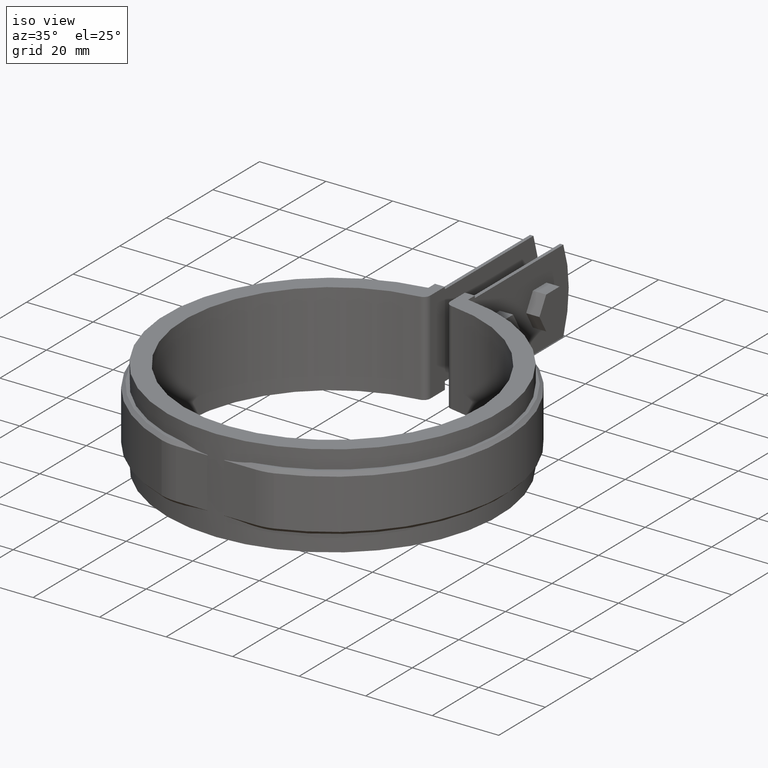
[diagram: clean part render]
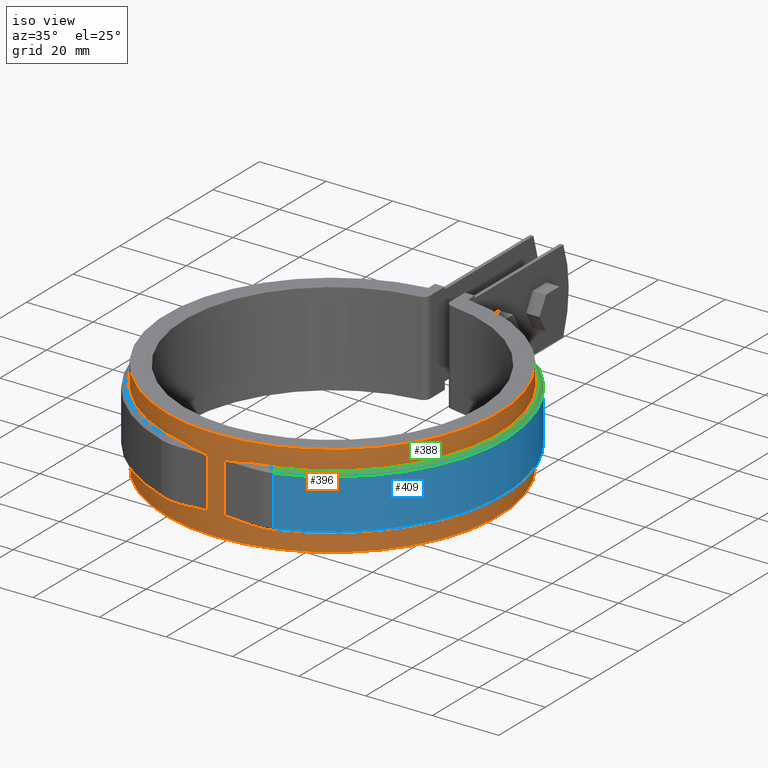
[diagram: same view with three faces highlighted in distinct colors, each labeled with its STEP entity id]
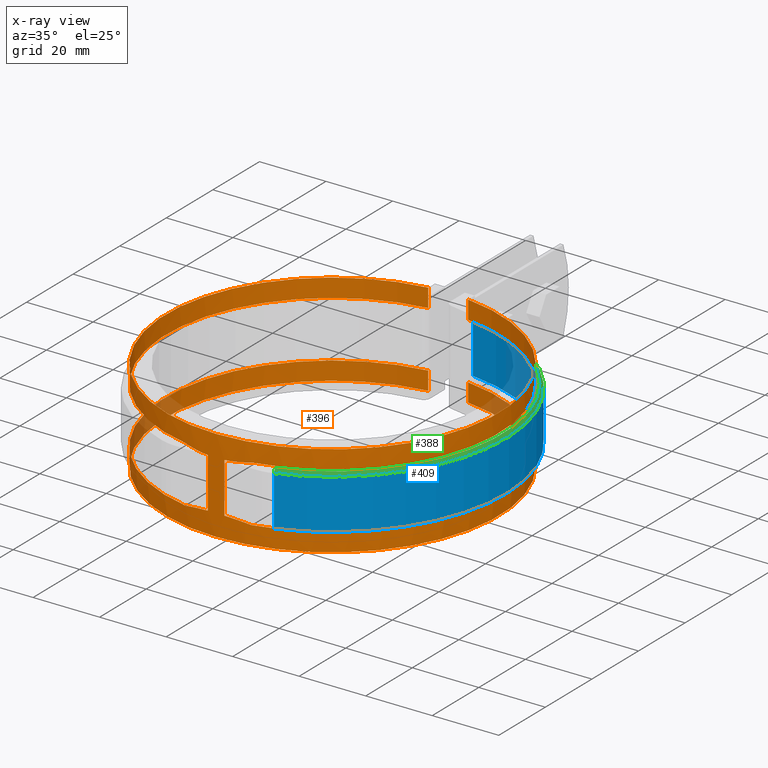
[diagram: x-ray of the same camera — body ghosted, the three highlighted faces saturated]
A machine part, iso view with three faces highlighted in distinct colors.
The next image is the same camera in x-ray (body ghosted, the three faces saturated) — at least one of them is partly hidden behind the body in this view.
Their STEP definitions:

[orange] entity #396 — the highlighted cylindrical surface (partial cylindrical patch) has radius 50.05 mm, axis along (0, 0, -1).
#396 = ADVANCED_FACE( '', ( #686 ), #687, .T. );
#686 = FACE_OUTER_BOUND( '', #1658, .T. );
#687 = CYLINDRICAL_SURFACE( '', #1659, 50.0500000000000 );
#1658 = EDGE_LOOP( '', ( #3135, #3136, #3137, #3138, #3139, #3140, #3141, #3142, #3143, #3144, #3145, #3146, #3147, #3148, #3149, #3150 ) );
#1659 = AXIS2_PLACEMENT_3D( '', #3151, #3152, #3153 );
#3135 = ORIENTED_EDGE( '', *, *, #4268, .F. );
#3136 = ORIENTED_EDGE( '', *, *, #4290, .T. );
#3137 = ORIENTED_EDGE( '', *, *, #4264, .T. );
#3138 = ORIENTED_EDGE( '', *, *, #4291, .T. );
#3139 = ORIENTED_EDGE( '', *, *, #4292, .T. );
#3140 = ORIENTED_EDGE( '', *, *, #4293, .T. );
#3141 = ORIENTED_EDGE( '', *, *, #4294, .T. );
#3142 = ORIENTED_EDGE( '', *, *, #4295, .F. );
#3143 = ORIENTED_EDGE( '', *, *, #4296, .T. );
#3144 = ORIENTED_EDGE( '', *, *, #4297, .T. );
#3145 = ORIENTED_EDGE( '', *, *, #4298, .T. );
#3146 = ORIENTED_EDGE( '', *, *, #4255, .T. );
#3147 = ORIENTED_EDGE( '', *, *, #4299, .F. );
#3148 = ORIENTED_EDGE( '', *, *, #4300, .F. );
#3149 = ORIENTED_EDGE( '', *, *, #4285, .F. );
#3150 = ORIENTED_EDGE( '', *, *, #4301, .T. );
#3151 = CARTESIAN_POINT( '', ( 1.73472347597681E-015, -1.38777878078145E-014, -14.0000000000000 ) );
#3152 = DIRECTION( '', ( 0.000000000000000, 0.000000000000000, -1.00000000000000 ) );
#3153 = DIRECTION( '', ( -0.141271445606700, 0.989970897883465, 0.000000000000000 ) );
#4255 = EDGE_CURVE( '', #4927, #4925, #4928, .T. );
#4264 = EDGE_CURVE( '', #4945, #4943, #4946, .T. );
#4268 = EDGE_CURVE( '', #4951, #4953, #4954, .T. );
#4285 = EDGE_CURVE( '', #4981, #4983, #4984, .T. );
#4290 = EDGE_CURVE( '', #4951, #4945, #4991, .T. );
#4291 = EDGE_CURVE( '', #4943, #4992, #4993, .F. );
#4292 = EDGE_CURVE( '', #4992, #4994, #4995, .T. );
#4293 = EDGE_CURVE( '', #4994, #4996, #4997, .T. );
#4294 = EDGE_CURVE( '', #4996, #4998, #4999, .T. );
#4295 = EDGE_CURVE( '', #5000, #4998, #5001, .T. );
#4296 = EDGE_CURVE( '', #5000, #5002, #5003, .T. );
#4297 = EDGE_CURVE( '', #5002, #5004, #5005, .F. );
#4298 = EDGE_CURVE( '', #5004, #4927, #5006, .F. );
#4299 = EDGE_CURVE( '', #5007, #4925, #5008, .T. );
#4300 = EDGE_CURVE( '', #4983, #5007, #5009, .T. );
#4301 = EDGE_CURVE( '', #4981, #4953, #5010, .T. );
#4925 = VERTEX_POINT( '', #7552 );
#4927 = VERTEX_POINT( '', #7555 );
#4928 = ELLIPSE( '', #7556, 70.7813887967734, 50.0500000000000 );
#4943 = VERTEX_POINT( '', #7578 );
#4945 = VERTEX_POINT( '', #7581 );
#4946 = LINE( '', #7582, #7583 );
#4951 = VERTEX_POINT( '', #7589 );
#4953 = VERTEX_POINT( '', #7592 );
#4954 = CIRCLE( '', #7593, 50.0500000000000 );
#4981 = VERTEX_POINT( '', #7634 );
#4983 = VERTEX_POINT( '', #7637 );
#4984 = CIRCLE( '', #7638, 50.0500000000000 );
#4991 = ELLIPSE( '', #7647, 70.7813887967734, 50.0500000000000 );
#4992 = VERTEX_POINT( '', #7648 );
#4993 = ELLIPSE( '', #7649, 70.7813887967734, 50.0500000000000 );
#4994 = VERTEX_POINT( '', #7650 );
#4995 = CIRCLE( '', #7651, 50.0500000000000 );
#4996 = VERTEX_POINT( '', #7652 );
#4997 = LINE( '', #7653, #7654 );
#4998 = VERTEX_POINT( '', #7655 );
#4999 = CIRCLE( '', #7656, 50.0500000000000 );
#5000 = VERTEX_POINT( '', #7657 );
#5001 = LINE( '', #7658, #7659 );
#5002 = VERTEX_POINT( '', #7660 );
#5003 = CIRCLE( '', #7661, 50.0500000000000 );
#5004 = VERTEX_POINT( '', #7662 );
#5005 = ELLIPSE( '', #7663, 70.7813887967734, 50.0500000000000 );
#5006 = LINE( '', #7664, #7665 );
#5007 = VERTEX_POINT( '', #7666 );
#5008 = CIRCLE( '', #7667, 50.0500000000000 );
#5009 = LINE( '', #7668, #7669 );
#5010 = LINE( '', #7670, #7671 );
#7552 = CARTESIAN_POINT( '', ( -9.95489829179598, -49.0500000000000, -8.50000000000000 ) );
#7555 = CARTESIAN_POINT( '', ( -2.50000000000000, -49.9875234433554, -7.56247655664464 ) );
#7556 = AXIS2_PLACEMENT_3D( '', #8505, #8506, #8507 );
#7578 = CARTESIAN_POINT( '', ( 2.50000000000000, -49.9875234433554, 7.56247655664463 ) );
#7581 = CARTESIAN_POINT( '', ( 2.50000000000000, -49.9875234433554, -7.56247655664464 ) );
#7582 = CARTESIAN_POINT( '', ( 2.50000000000000, -49.9875234433554, -14.0000000000000 ) );
#7583 = VECTOR( '', #8519, 1000.00000000000 );
#7589 = CARTESIAN_POINT( '', ( 9.95489829179598, -49.0500000000000, -8.50000000000000 ) );
#7592 = CARTESIAN_POINT( '', ( 6.00000000000001, 49.6890581516696, -8.50000000000000 ) );
#7593 = AXIS2_PLACEMENT_3D( '', #8525, #8526, #8527 );
#7634 = CARTESIAN_POINT( '', ( 6.00000000000001, 49.6890581516696, -14.0000000000000 ) );
#7637 = CARTESIAN_POINT( '', ( -6.00000000000003, 49.6890581516696, -14.0000000000000 ) );
#7638 = AXIS2_PLACEMENT_3D( '', #8546, #8547, #8548 );
#7647 = AXIS2_PLACEMENT_3D( '', #8557, #8558, #8559 );
#7648 = CARTESIAN_POINT( '', ( 9.95489829179598, -49.0500000000000, 8.49999999999999 ) );
#7649 = AXIS2_PLACEMENT_3D( '', #8560, #8561, #8562 );
#7650 = CARTESIAN_POINT( '', ( 6.00000000000001, 49.6890581516696, 8.49999999999999 ) );
#7651 = AXIS2_PLACEMENT_3D( '', #8563, #8564, #8565 );
#7652 = CARTESIAN_POINT( '', ( 6.00000000000001, 49.6890581516696, 14.0000000000000 ) );
#7653 = CARTESIAN_POINT( '', ( 6.00000000000001, 49.6890581516696, -14.0000000000000 ) );
#7654 = VECTOR( '', #8566, 1000.00000000000 );
#7655 = CARTESIAN_POINT( '', ( -6.00000000000003, 49.6890581516696, 14.0000000000000 ) );
#7656 = AXIS2_PLACEMENT_3D( '', #8567, #8568, #8569 );
#7657 = CARTESIAN_POINT( '', ( -6.00000000000003, 49.6890581516696, 8.50000000000000 ) );
#7658 = CARTESIAN_POINT( '', ( -6.00000000000003, 49.6890581516696, -14.0000000000000 ) );
#7659 = VECTOR( '', #8570, 1000.00000000000 );
#7660 = CARTESIAN_POINT( '', ( -9.95489829179598, -49.0500000000000, 8.49999999999999 ) );
#7661 = AXIS2_PLACEMENT_3D( '', #8571, #8572, #8573 );
#7662 = CARTESIAN_POINT( '', ( -2.50000000000000, -49.9875234433554, 7.56247655664463 ) );
#7663 = AXIS2_PLACEMENT_3D( '', #8574, #8575, #8576 );
#7664 = CARTESIAN_POINT( '', ( -2.50000000000000, -49.9875234433554, -14.0000000000000 ) );
#7665 = VECTOR( '', #8577, 1000.00000000000 );
#7666 = CARTESIAN_POINT( '', ( -6.00000000000000, 49.6890581516696, -8.50000000000000 ) );
#7667 = AXIS2_PLACEMENT_3D( '', #8578, #8579, #8580 );
#7668 = CARTESIAN_POINT( '', ( -6.00000000000003, 49.6890581516696, -14.0000000000000 ) );
#7669 = VECTOR( '', #8581, 1000.00000000000 );
#7670 = CARTESIAN_POINT( '', ( 6.00000000000001, 49.6890581516696, -14.0000000000000 ) );
#7671 = VECTOR( '', #8582, 1000.00000000000 );
#8505 = CARTESIAN_POINT( '', ( 1.73472347597681E-015, -1.38777878078145E-014, -57.5500000000000 ) );
#8506 = DIRECTION( '', ( -9.81307786677359E-018, -0.707106781186547, -0.707106781186548 ) );
#8507 = DIRECTION( '', ( -9.81307786677360E-018, -0.707106781186548, 0.707106781186547 ) );
#8519 = DIRECTION( '', ( 0.000000000000000, 0.000000000000000, 1.00000000000000 ) );
#8525 = CARTESIAN_POINT( '', ( 1.73472347597681E-015, -1.38777878078145E-014, -8.50000000000000 ) );
#8526 = DIRECTION( '', ( 0.000000000000000, 0.000000000000000, 1.00000000000000 ) );
#8527 = DIRECTION( '', ( 1.00000000000000, 0.000000000000000, 0.000000000000000 ) );
#8546 = CARTESIAN_POINT( '', ( 1.73472347597681E-015, -1.38777878078145E-014, -14.0000000000000 ) );
#8547 = DIRECTION( '', ( 0.000000000000000, 0.000000000000000, -1.00000000000000 ) );
#8548 = DIRECTION( '', ( 1.00000000000000, 2.77555756156289E-017, 0.000000000000000 ) );
#8557 = CARTESIAN_POINT( '', ( 1.73472347597681E-015, -1.38777878078145E-014, -57.5500000000000 ) );
#8558 = DIRECTION( '', ( 9.81307786677359E-018, -0.707106781186547, -0.707106781186548 ) );
#8559 = DIRECTION( '', ( 9.81307786677360E-018, -0.707106781186548, 0.707106781186547 ) );
#8560 = CARTESIAN_POINT( '', ( 1.73472347597681E-015, -1.38777878078145E-014, 57.5500000000000 ) );
#8561 = DIRECTION( '', ( -9.81307786677359E-018, 0.707106781186547, -0.707106781186548 ) );
#8562 = DIRECTION( '', ( -9.81307786677360E-018, 0.707106781186548, 0.707106781186547 ) );
#8563 = CARTESIAN_POINT( '', ( 1.73472347597681E-015, -1.38777878078145E-014, 8.49999999999999 ) );
#8564 = DIRECTION( '', ( 0.000000000000000, 0.000000000000000, 1.00000000000000 ) );
#8565 = DIRECTION( '', ( 1.00000000000000, 0.000000000000000, 0.000000000000000 ) );
#8566 = DIRECTION( '', ( 0.000000000000000, 0.000000000000000, 1.00000000000000 ) );
#8567 = CARTESIAN_POINT( '', ( 1.73472347597681E-015, -1.38777878078145E-014, 14.0000000000000 ) );
#8568 = DIRECTION( '', ( 0.000000000000000, 0.000000000000000, -1.00000000000000 ) );
#8569 = DIRECTION( '', ( 1.00000000000000, 2.77555756156289E-017, 0.000000000000000 ) );
#8570 = DIRECTION( '', ( 0.000000000000000, 0.000000000000000, 1.00000000000000 ) );
#8571 = CARTESIAN_POINT( '', ( 1.73472347597681E-015, -1.38777878078145E-014, 8.49999999999999 ) );
#8572 = DIRECTION( '', ( 0.000000000000000, 0.000000000000000, 1.00000000000000 ) );
#8573 = DIRECTION( '', ( 1.00000000000000, 0.000000000000000, 0.000000000000000 ) );
#8574 = CARTESIAN_POINT( '', ( 1.73472347597681E-015, -1.38777878078145E-014, 57.5500000000000 ) );
#8575 = DIRECTION( '', ( 9.81307786677359E-018, 0.707106781186547, -0.707106781186548 ) );
#8576 = DIRECTION( '', ( 9.81307786677360E-018, 0.707106781186548, 0.707106781186547 ) );
#8577 = DIRECTION( '', ( 0.000000000000000, 0.000000000000000, 1.00000000000000 ) );
#8578 = CARTESIAN_POINT( '', ( 1.73472347597681E-015, -1.38777878078145E-014, -8.50000000000000 ) );
#8579 = DIRECTION( '', ( 0.000000000000000, 0.000000000000000, 1.00000000000000 ) );
#8580 = DIRECTION( '', ( 1.00000000000000, 0.000000000000000, 0.000000000000000 ) );
#8581 = DIRECTION( '', ( 0.000000000000000, 0.000000000000000, 1.00000000000000 ) );
#8582 = DIRECTION( '', ( 0.000000000000000, 0.000000000000000, 1.00000000000000 ) );

[blue] entity #409 — the highlighted cylindrical surface (partial cylindrical patch) has radius 52.05 mm, axis along (0, 0, -1).
#409 = ADVANCED_FACE( '', ( #712 ), #713, .T. );
#712 = FACE_OUTER_BOUND( '', #1684, .T. );
#713 = CYLINDRICAL_SURFACE( '', #1685, 52.0500000000000 );
#1684 = EDGE_LOOP( '', ( #3259, #3260, #3261, #3262 ) );
#1685 = AXIS2_PLACEMENT_3D( '', #3263, #3264, #3265 );
#3259 = ORIENTED_EDGE( '', *, *, #4304, .F. );
#3260 = ORIENTED_EDGE( '', *, *, #4261, .T. );
#3261 = ORIENTED_EDGE( '', *, *, #4333, .F. );
#3262 = ORIENTED_EDGE( '', *, *, #4338, .T. );
#3263 = CARTESIAN_POINT( '', ( 0.000000000000000, -1.38777878078145E-014, -8.50000000000000 ) );
#3264 = DIRECTION( '', ( 0.000000000000000, 0.000000000000000, -1.00000000000000 ) );
#3265 = DIRECTION( '', ( 0.0960614793467818, 0.995375402642494, 0.000000000000000 ) );
#4261 = EDGE_CURVE( '', #4933, #4937, #4939, .F. );
#4304 = EDGE_CURVE( '', #4933, #5013, #5014, .F. );
#4333 = EDGE_CURVE( '', #5058, #4937, #5059, .T. );
#4338 = EDGE_CURVE( '', #5058, #5013, #5065, .T. );
#4933 = VERTEX_POINT( '', #7563 );
#4937 = VERTEX_POINT( '', #7570 );
#4939 = CIRCLE( '', #7573, 52.0500000000000 );
#5013 = VERTEX_POINT( '', #7676 );
#5014 = LINE( '', #7677, #7678 );
#5058 = VERTEX_POINT( '', #7746 );
#5059 = LINE( '', #7747, #7748 );
#5065 = CIRCLE( '', #7755, 52.0500000000000 );
#7563 = CARTESIAN_POINT( '', ( 6.00000000000001, 51.7030221553828, 7.50000000000001 ) );
#7570 = CARTESIAN_POINT( '', ( 16.8700026854753, -49.2402834008097, 7.50000000000001 ) );
#7573 = AXIS2_PLACEMENT_3D( '', #8514, #8515, #8516 );
#7676 = CARTESIAN_POINT( '', ( 6.00000000000001, 51.7030221553828, -7.50000000000000 ) );
#7677 = CARTESIAN_POINT( '', ( 6.00000000000001, 51.7030221553828, -8.50000000000000 ) );
#7678 = VECTOR( '', #8585, 1000.00000000000 );
#7746 = CARTESIAN_POINT( '', ( 16.8700026854753, -49.2402834008097, -7.50000000000000 ) );
#7747 = CARTESIAN_POINT( '', ( 16.8700026854753, -49.2402834008097, -8.50000000000000 ) );
#7748 = VECTOR( '', #8631, 1000.00000000000 );
#7755 = AXIS2_PLACEMENT_3D( '', #8642, #8643, #8644 );
#8514 = CARTESIAN_POINT( '', ( 0.000000000000000, -1.38777878078145E-014, 7.50000000000000 ) );
#8515 = DIRECTION( '', ( 0.000000000000000, 0.000000000000000, 1.00000000000000 ) );
#8516 = DIRECTION( '', ( 1.00000000000000, 0.000000000000000, 0.000000000000000 ) );
#8585 = DIRECTION( '', ( 0.000000000000000, 0.000000000000000, 1.00000000000000 ) );
#8631 = DIRECTION( '', ( 0.000000000000000, 0.000000000000000, 1.00000000000000 ) );
#8642 = CARTESIAN_POINT( '', ( 0.000000000000000, -1.38777878078145E-014, -7.50000000000000 ) );
#8643 = DIRECTION( '', ( 0.000000000000000, 0.000000000000000, 1.00000000000000 ) );
#8644 = DIRECTION( '', ( 1.00000000000000, 0.000000000000000, 0.000000000000000 ) );

[green] entity #388 — the highlighted conical surface has half-angle 45 deg.
#388 = ADVANCED_FACE( '', ( #668 ), #669, .T. );
#668 = FACE_OUTER_BOUND( '', #1638, .T. );
#669 = CONICAL_SURFACE( '', #1639, 52.0500000000000, 0.785398163397452 );
#1638 = EDGE_LOOP( '', ( #3034, #3035, #3036, #3037 ) );
#1639 = AXIS2_PLACEMENT_3D( '', #3038, #3039, #3040 );
#3034 = ORIENTED_EDGE( '', *, *, #4258, .F. );
#3035 = ORIENTED_EDGE( '', *, *, #4259, .F. );
#3036 = ORIENTED_EDGE( '', *, *, #4260, .F. );
#3037 = ORIENTED_EDGE( '', *, *, #4261, .F. );
#3038 = CARTESIAN_POINT( '', ( 0.000000000000000, -1.38777878078145E-014, 7.50000000000000 ) );
#3039 = DIRECTION( '', ( 0.000000000000000, 0.000000000000000, -1.00000000000000 ) );
#3040 = DIRECTION( '', ( -1.00000000000000, 0.000000000000000, 0.000000000000000 ) );
#4258 = EDGE_CURVE( '', #4932, #4933, #4934, .T. );
#4259 = EDGE_CURVE( '', #4935, #4932, #4936, .T. );
#4260 = EDGE_CURVE( '', #4937, #4935, #4938, .T. );
#4261 = EDGE_CURVE( '', #4933, #4937, #4939, .F. );
#4932 = VERTEX_POINT( '', #7562 );
#4933 = VERTEX_POINT( '', #7563 );
#4934 = B_SPLINE_CURVE_WITH_KNOTS( '', 3, ( #7564, #7565, #7566, #7567 ), .UNSPECIFIED., .F., .F., ( 4, 4 ), ( 1.73472347597681E-018, 0.00141906111018388 ), .UNSPECIFIED. );
#4935 = VERTEX_POINT( '', #7568 );
#4936 = CIRCLE( '', #7569, 51.0500000000000 );
#4937 = VERTEX_POINT( '', #7570 );
#4938 = LINE( '', #7571, #7572 );
#4939 = CIRCLE( '', #7573, 52.0500000000000 );
#7562 = CARTESIAN_POINT( '', ( 6.00000000000001, 50.6961783569531, 8.49999999999999 ) );
#7563 = CARTESIAN_POINT( '', ( 6.00000000000001, 51.7030221553828, 7.50000000000001 ) );
#7564 = CARTESIAN_POINT( '', ( 6.00000000000001, 50.6961783569531, 8.50000000000000 ) );
#7565 = CARTESIAN_POINT( '', ( 6.00000000000001, 51.0318153765527, 8.16668924174696 ) );
#7566 = CARTESIAN_POINT( '', ( 6.00000000000001, 51.3674295438524, 7.83335547030038 ) );
#7567 = CARTESIAN_POINT( '', ( 6.00000000000001, 51.7030221553827, 7.50000000000000 ) );
#7568 = CARTESIAN_POINT( '', ( 16.5458912025651, -48.2942645074224, 8.50000000000000 ) );
#7569 = AXIS2_PLACEMENT_3D( '', #8510, #8511, #8512 );
#7570 = CARTESIAN_POINT( '', ( 16.8700026854753, -49.2402834008097, 7.50000000000001 ) );
#7571 = CARTESIAN_POINT( '', ( 16.8700026854753, -49.2402834008097, 7.50000000000000 ) );
#7572 = VECTOR( '', #8513, 1000.00000000000 );
#7573 = AXIS2_PLACEMENT_3D( '', #8514, #8515, #8516 );
#8510 = CARTESIAN_POINT( '', ( 0.000000000000000, -1.38777878078145E-014, 8.50000000000000 ) );
#8511 = DIRECTION( '', ( 0.000000000000000, 0.000000000000000, 1.00000000000000 ) );
#8512 = DIRECTION( '', ( 1.00000000000000, 0.000000000000000, 0.000000000000000 ) );
#8513 = DIRECTION( '', ( -0.229181427426222, 0.668936374644766, 0.707106781186545 ) );
#8514 = CARTESIAN_POINT( '', ( 0.000000000000000, -1.38777878078145E-014, 7.50000000000000 ) );
#8515 = DIRECTION( '', ( 0.000000000000000, 0.000000000000000, 1.00000000000000 ) );
#8516 = DIRECTION( '', ( 1.00000000000000, 0.000000000000000, 0.000000000000000 ) );